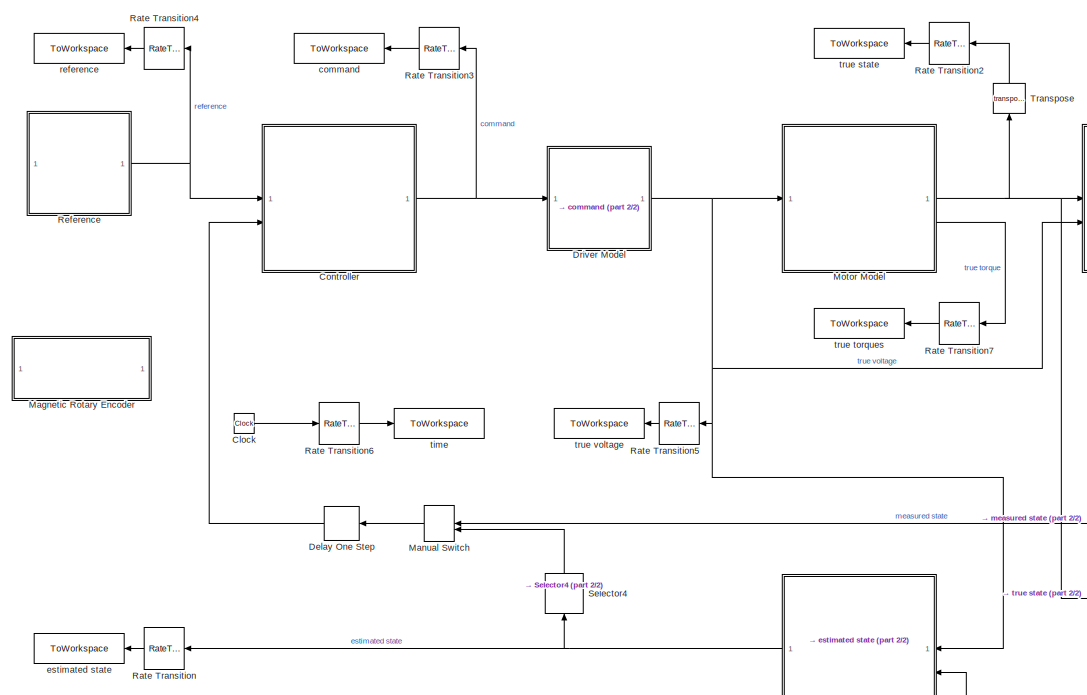
[diagram: root canvas - part 1/2, middle left region]
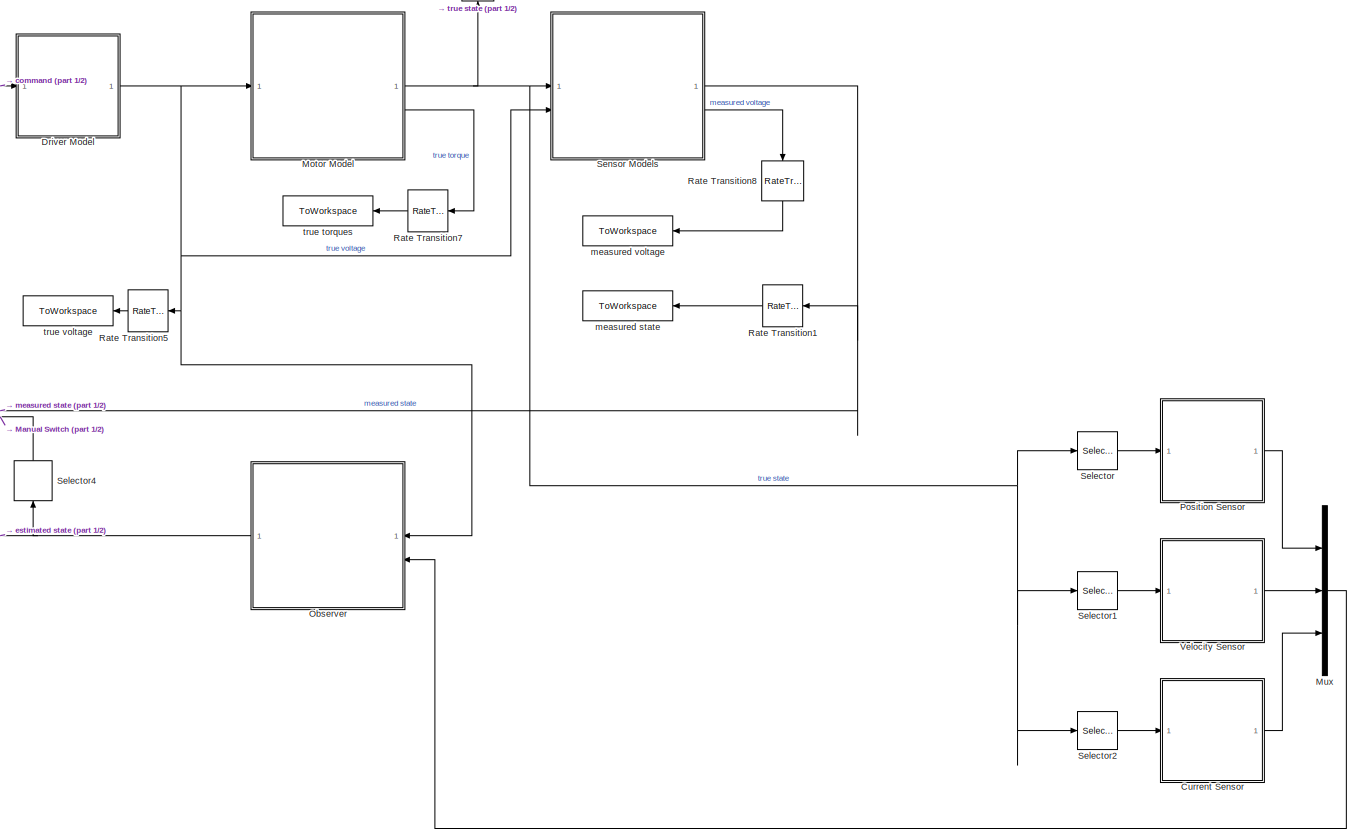
[diagram: root canvas - part 2/2, center side, full height]
MODEL slx_464a62b82a85
KIND model
CONFIG AbsTol = auto
CONFIG EnableMultiTasking = off
CONFIG FixedStep = 1e-4
CONFIG MaxStep = auto
CONFIG MinStep = auto
CONFIG RelTol = 1e-2
CONFIG SampleTimeConstraint = Unconstrained
CONFIG SolverName = ode23t
CONFIG StartTime = 0.0
CONFIG StopTime = sim_params.Tstop
BLOCK [Clock] Clock
  Decimation = 1
BLOCK [SubSystem] Controller
  Kd = 0.1
  Ki = 0.9
  Kp = 10
  ReferencedSubsystem = SWPID_Position
BLOCK [SubSystem] Current Sensor
  Commented = on
  ReferencedSubsystem = Ideal_Sensor
BLOCK [Delay] Delay One Step
  Commented = through
  DelayLength = 1
  InputPortMap = u0
  NameLocation = top
  SampleTime = 1e-3
BLOCK [SubSystem] Driver Model
  ReferencedSubsystem = Ideal_Driver
  driver_model = DRV8830
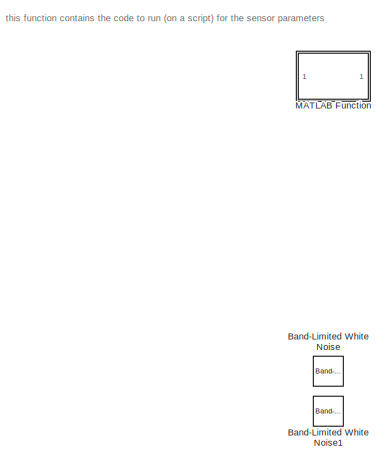
[diagram: Magnetic Rotary Encoder - part 1/2, top left region]
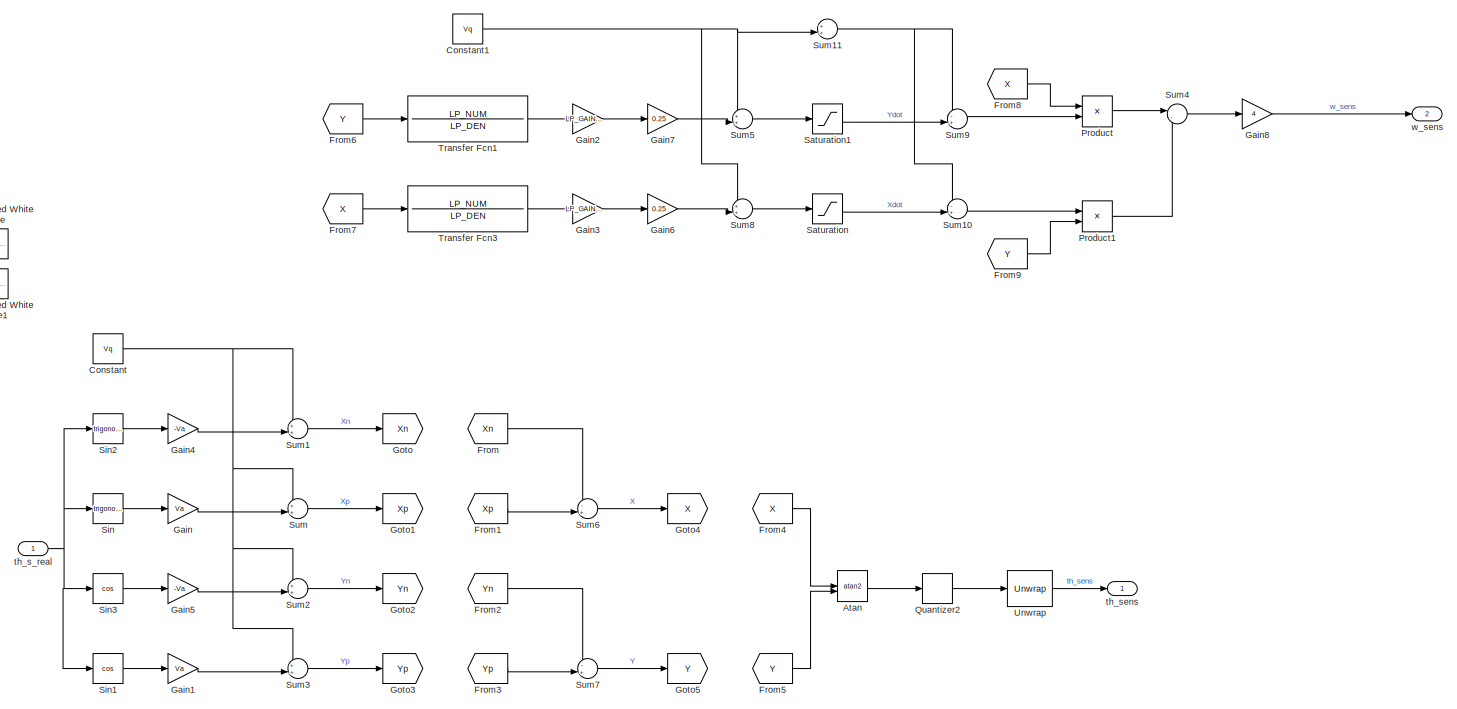
[diagram: Magnetic Rotary Encoder - part 2/2, most of the canvas]
BLOCK [SubSystem] Magnetic Rotary Encoder
  Commented = on
BLOCK [Trigonometry] Magnetic Rotary Encoder/Atan
  Operator = atan2
BLOCK [Reference] Magnetic Rotary Encoder/Band-Limited White Noise  REF=simulink/Sources/Band-Limited
White Noise
  Commented = on
  SourceBlock = simulink/Sources/Band-Limited\nWhite Noise
  SourceType = Band-Limited White Noise.
BLOCK [Reference] Magnetic Rotary Encoder/Band-Limited White Noise1  REF=simulink/Sources/Band-Limited
White Noise
  Commented = on
  SourceBlock = simulink/Sources/Band-Limited\nWhite Noise
  SourceType = Band-Limited White Noise.
BLOCK [Constant] Magnetic Rotary Encoder/Constant
  Value = Vq
BLOCK [Constant] Magnetic Rotary Encoder/Constant1
  Value = Vq
BLOCK [From] Magnetic Rotary Encoder/From
  GotoTag = Xn
BLOCK [From] Magnetic Rotary Encoder/From1
  GotoTag = Xp
BLOCK [From] Magnetic Rotary Encoder/From2
  GotoTag = Yn
BLOCK [From] Magnetic Rotary Encoder/From3
  GotoTag = Yp
BLOCK [From] Magnetic Rotary Encoder/From4
  GotoTag = X
BLOCK [From] Magnetic Rotary Encoder/From5
  GotoTag = Y
BLOCK [From] Magnetic Rotary Encoder/From6
  GotoTag = Y
BLOCK [From] Magnetic Rotary Encoder/From7
  GotoTag = X
BLOCK [From] Magnetic Rotary Encoder/From8
  GotoTag = X
BLOCK [From] Magnetic Rotary Encoder/From9
  GotoTag = Y
BLOCK [Gain] Magnetic Rotary Encoder/Gain
  Gain = Va
BLOCK [Gain] Magnetic Rotary Encoder/Gain1
  Gain = Va
BLOCK [Gain] Magnetic Rotary Encoder/Gain2
  Gain = LP_GAIN/(2*Va)^2
BLOCK [Gain] Magnetic Rotary Encoder/Gain3
  Gain = LP_GAIN/(2*Va)^2
BLOCK [Gain] Magnetic Rotary Encoder/Gain4
  Gain = -Va
BLOCK [Gain] Magnetic Rotary Encoder/Gain5
  Gain = -Va
BLOCK [Gain] Magnetic Rotary Encoder/Gain6
  Gain = 0.25
BLOCK [Gain] Magnetic Rotary Encoder/Gain7
  Gain = 0.25
BLOCK [Gain] Magnetic Rotary Encoder/Gain8
  Gain = 4
BLOCK [Goto] Magnetic Rotary Encoder/Goto
  GotoTag = Xn
BLOCK [Goto] Magnetic Rotary Encoder/Goto1
  GotoTag = Xp
BLOCK [Goto] Magnetic Rotary Encoder/Goto2
  GotoTag = Yn
BLOCK [Goto] Magnetic Rotary Encoder/Goto3
  GotoTag = Yp
BLOCK [Goto] Magnetic Rotary Encoder/Goto4
  GotoTag = X
BLOCK [Goto] Magnetic Rotary Encoder/Goto5
  GotoTag = Y
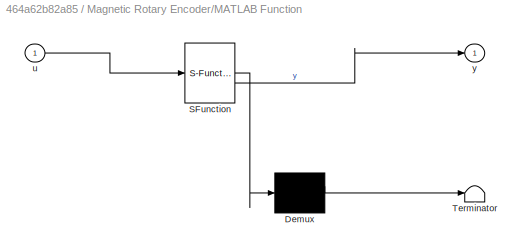
BLOCK [SubSystem] Magnetic Rotary Encoder/MATLAB Function
  ErrorFcn = Stateflow.Translate.translate
  LibrarySourceBlock = simulink/User-Defined\nFunctions/MATLAB Function
  PermitHierarchicalResolution = ExplicitOnly
  SFBlockType = MATLAB Function
  TreatAsAtomicUnit = on
BLOCK [Demux] Magnetic Rotary Encoder/MATLAB Function/ Demux 
  Outputs = 1
BLOCK [S-Function] Magnetic Rotary Encoder/MATLAB Function/ SFunction 
  EnableBusSupport = on
  FunctionName = sf_sfun
  PortCounts = [1 2]
  SFcnIsStateOwnerBlock = off
  SFunctionDeploymentMode = off
  Tag = Stateflow S-Function 2
BLOCK [Terminator] Magnetic Rotary Encoder/MATLAB Function/ Terminator 
BLOCK [Inport] Magnetic Rotary Encoder/MATLAB Function/u
BLOCK [Outport] Magnetic Rotary Encoder/MATLAB Function/y
BLOCK [Product] Magnetic Rotary Encoder/Product
BLOCK [Product] Magnetic Rotary Encoder/Product1
BLOCK [Quantizer] Magnetic Rotary Encoder/Quantizer2
  Commented = through
  QuantizationInterval = AS5600.q_step
BLOCK [Saturate] Magnetic Rotary Encoder/Saturation
  LowerLimit = 0.5
  UpperLimit = 4.5
BLOCK [Saturate] Magnetic Rotary Encoder/Saturation1
  LowerLimit = 0.5
  UpperLimit = 4.5
BLOCK [Trigonometry] Magnetic Rotary Encoder/Sin
BLOCK [Trigonometry] Magnetic Rotary Encoder/Sin1
  Operator = cos
BLOCK [Trigonometry] Magnetic Rotary Encoder/Sin2
BLOCK [Trigonometry] Magnetic Rotary Encoder/Sin3
  Operator = cos
BLOCK [Sum] Magnetic Rotary Encoder/Sum
  Inputs = ++|
BLOCK [Sum] Magnetic Rotary Encoder/Sum1
  Inputs = ++|
BLOCK [Sum] Magnetic Rotary Encoder/Sum10
  Inputs = -+|
BLOCK [Sum] Magnetic Rotary Encoder/Sum11
  Inputs = ++|
BLOCK [Sum] Magnetic Rotary Encoder/Sum2
  Inputs = ++|
BLOCK [Sum] Magnetic Rotary Encoder/Sum3
  Inputs = ++|
BLOCK [Sum] Magnetic Rotary Encoder/Sum4
  Inputs = |-+
BLOCK [Sum] Magnetic Rotary Encoder/Sum5
  Inputs = ++|
BLOCK [Sum] Magnetic Rotary Encoder/Sum6
  Inputs = -+|
BLOCK [Sum] Magnetic Rotary Encoder/Sum7
  Inputs = -+|
BLOCK [Sum] Magnetic Rotary Encoder/Sum8
  Inputs = ++|
BLOCK [Sum] Magnetic Rotary Encoder/Sum9
  Inputs = -+|
BLOCK [TransferFcn] Magnetic Rotary Encoder/Transfer Fcn1
  Denominator = LP_DEN
  Numerator = LP_NUM
BLOCK [TransferFcn] Magnetic Rotary Encoder/Transfer Fcn3
  Denominator = LP_DEN
  Numerator = LP_NUM
BLOCK [Reference] Magnetic Rotary Encoder/Unwrap  REF=dspsigops/Unwrap
  SourceBlock = dspsigops/Unwrap
  SourceType = Unwrap
  UserDataPersistent = on
BLOCK [Inport] Magnetic Rotary Encoder/th_s_real
  NameLocation = left
BLOCK [Outport] Magnetic Rotary Encoder/th_sens
  NameLocation = right
BLOCK [Outport] Magnetic Rotary Encoder/w_sens
  NameLocation = right
  Port = 2
BLOCK [ManualSwitch] Manual Switch
  NameLocation = top
BLOCK [SubSystem] Motor Model
  ReferencedSubsystem = Modular_Motor
  coulomb_friction = on
  flux_weakening = on
  initial_conditions = [0;0;0;0]
  motor_model = motor
  stribeck_friction = on
BLOCK [Mux] Mux
  Commented = on
  DisplayOption = bar
  Inputs = 3
BLOCK [SubSystem] Observer
  ReferencedSubsystem = No_Observer
BLOCK [SubSystem] Position Sensor
  Commented = on
  ReferencedSubsystem = AS5600_Sensor
  offset = 0
  sensor_model = AS5600
  wrapping = off
BLOCK [RateTransition] Rate Transition
  NameLocation = top
  OutPortSampleTime = sim_params.Tsample
BLOCK [RateTransition] Rate Transition1
  NameLocation = top
  OutPortSampleTime = sim_params.Tsample
BLOCK [RateTransition] Rate Transition2
  NameLocation = top
  OutPortSampleTime = sim_params.Tsample
BLOCK [RateTransition] Rate Transition3
  NameLocation = top
  OutPortSampleTime = sim_params.Tsample
BLOCK [RateTransition] Rate Transition4
  Commented = through
  NameLocation = top
  OutPortSampleTime = sim_params.Tsample
BLOCK [RateTransition] Rate Transition5
  NameLocation = top
  OutPortSampleTime = sim_params.Tsample
BLOCK [RateTransition] Rate Transition6
  OutPortSampleTime = sim_params.Tsample
BLOCK [RateTransition] Rate Transition7
  NameLocation = top
  OutPortSampleTime = sim_params.Tsample
BLOCK [RateTransition] Rate Transition8
  NameLocation = left
  OutPortSampleTime = sim_params.Tsample
BLOCK [SubSystem] Reference
  After = 3.1416*10
  ReferencedSubsystem = Step_Reference
  Time = 2
BLOCK [Selector] Selector
  Commented = on
  IndexOptions = Index vector (dialog)
  Indices = 1
  InputPortWidth = 3
  OutputSizes = 1
BLOCK [Selector] Selector1
  Commented = on
  IndexOptions = Index vector (dialog)
  Indices = 1
  InputPortWidth = 3
  OutputSizes = 1
BLOCK [Selector] Selector2
  Commented = on
  IndexOptions = Index vector (dialog)
  Indices = 3
  InputPortWidth = 3
  OutputSizes = 1
BLOCK [Selector] Selector4
  IndexOptions = Index vector (dialog)
  Indices = [1:3]
  InputPortWidth = 4
  NameLocation = right
  OutputSizes = 1
BLOCK [SubSystem] Sensor Models
  ReferencedSubsystem = Sensor_Array
  input1 = 1
  input2 = 1
  input3 = 3
  input4 = 4
BLOCK [Math] Transpose
  NameLocation = right
  Operator = transpose
BLOCK [SubSystem] Velocity Sensor
  Commented = on
  ReferencedSubsystem = Real_Derivative
BLOCK [ToWorkspace] command
  FixptAsFi = on
  MaxDataPoints = inf
  NameLocation = top
  SampleTime = sim_params.Tsample
  Save2DSignal = 2-D array (concatenate along first dimension)
  VariableName = sim_command
BLOCK [ToWorkspace] estimated state
  FixptAsFi = on
  MaxDataPoints = inf
  NameLocation = top
  SampleTime = sim_params.Tsample
  Save2DSignal = 2-D array (concatenate along first dimension)
  VariableName = sim_estimated_state
BLOCK [ToWorkspace] measured state
  FixptAsFi = on
  MaxDataPoints = inf
  NameLocation = top
  SampleTime = sim_params.Tsample
  Save2DSignal = 2-D array (concatenate along first dimension)
  VariableName = sim_measured_state
BLOCK [ToWorkspace] measured voltage
  FixptAsFi = on
  MaxDataPoints = inf
  NameLocation = top
  SampleTime = sim_params.Tsample
  Save2DSignal = 2-D array (concatenate along first dimension)
  VariableName = sim_measured_voltage
BLOCK [ToWorkspace] reference
  FixptAsFi = on
  MaxDataPoints = inf
  NameLocation = top
  SampleTime = sim_params.Tsample
  Save2DSignal = 2-D array (concatenate along first dimension)
  VariableName = sim_reference
BLOCK [ToWorkspace] time
  FixptAsFi = on
  MaxDataPoints = inf
  SampleTime = sim_params.Tsample
  Save2DSignal = 2-D array (concatenate along first dimension)
  VariableName = sim_time
BLOCK [ToWorkspace] true state
  FixptAsFi = on
  MaxDataPoints = inf
  NameLocation = top
  SampleTime = sim_params.Tsample
  Save2DSignal = 2-D array (concatenate along first dimension)
  VariableName = sim_true_state
BLOCK [ToWorkspace] true torques
  FixptAsFi = on
  MaxDataPoints = inf
  NameLocation = top
  SampleTime = sim_params.Tsample
  Save2DSignal = 2-D array (concatenate along first dimension)
  VariableName = sim_true_torques
BLOCK [ToWorkspace] true voltage
  FixptAsFi = on
  MaxDataPoints = inf
  NameLocation = top
  SampleTime = sim_params.Tsample
  Save2DSignal = 2-D array (concatenate along first dimension)
  VariableName = sim_true_voltage
ANNOTATION Magnetic Rotary Encoder: this function contains the code to run (on a script) for the sensor parameters
LINE Clock:1 -> Rate Transition6:1
NET Controller:1 -> Driver Model:1, Rate Transition3:1
LINE Current Sensor:1 -> Mux:3
LINE Delay One Step:1 -> Controller:2
NET Driver Model:1 -> Motor Model:1, Observer:1, Rate Transition5:1, Sensor Models:2
LINE Magnetic Rotary Encoder/Atan:1 -> Magnetic Rotary Encoder/Quantizer2:1
NET Magnetic Rotary Encoder/Constant1:1 -> Magnetic Rotary Encoder/Sum11:2, Magnetic Rotary Encoder/Sum5:1, Magnetic Rotary Encoder/Sum8:1
NET Magnetic Rotary Encoder/Constant:1 -> Magnetic Rotary Encoder/Sum1:1, Magnetic Rotary Encoder/Sum2:1, Magnetic Rotary Encoder/Sum3:1, Magnetic Rotary Encoder/Sum:1
LINE Magnetic Rotary Encoder/From1:1 -> Magnetic Rotary Encoder/Sum6:2
LINE Magnetic Rotary Encoder/From2:1 -> Magnetic Rotary Encoder/Sum7:1
LINE Magnetic Rotary Encoder/From3:1 -> Magnetic Rotary Encoder/Sum7:2
LINE Magnetic Rotary Encoder/From4:1 -> Magnetic Rotary Encoder/Atan:1
LINE Magnetic Rotary Encoder/From5:1 -> Magnetic Rotary Encoder/Atan:2
LINE Magnetic Rotary Encoder/From6:1 -> Magnetic Rotary Encoder/Transfer Fcn1:1
LINE Magnetic Rotary Encoder/From7:1 -> Magnetic Rotary Encoder/Transfer Fcn3:1
LINE Magnetic Rotary Encoder/From8:1 -> Magnetic Rotary Encoder/Product:1
LINE Magnetic Rotary Encoder/From9:1 -> Magnetic Rotary Encoder/Product1:2
LINE Magnetic Rotary Encoder/From:1 -> Magnetic Rotary Encoder/Sum6:1
LINE Magnetic Rotary Encoder/Gain1:1 -> Magnetic Rotary Encoder/Sum3:2
LINE Magnetic Rotary Encoder/Gain2:1 -> Magnetic Rotary Encoder/Gain7:1
LINE Magnetic Rotary Encoder/Gain3:1 -> Magnetic Rotary Encoder/Gain6:1
LINE Magnetic Rotary Encoder/Gain4:1 -> Magnetic Rotary Encoder/Sum1:2
LINE Magnetic Rotary Encoder/Gain5:1 -> Magnetic Rotary Encoder/Sum2:2
LINE Magnetic Rotary Encoder/Gain6:1 -> Magnetic Rotary Encoder/Sum8:2
LINE Magnetic Rotary Encoder/Gain7:1 -> Magnetic Rotary Encoder/Sum5:2
LINE Magnetic Rotary Encoder/Gain8:1 -> Magnetic Rotary Encoder/w_sens:1
LINE Magnetic Rotary Encoder/Gain:1 -> Magnetic Rotary Encoder/Sum:2
LINE Magnetic Rotary Encoder/Product1:1 -> Magnetic Rotary Encoder/Sum4:2
LINE Magnetic Rotary Encoder/Product:1 -> Magnetic Rotary Encoder/Sum4:1
LINE Magnetic Rotary Encoder/Quantizer2:1 -> Magnetic Rotary Encoder/Unwrap:1
LINE Magnetic Rotary Encoder/Saturation1:1 -> Magnetic Rotary Encoder/Sum9:2
LINE Magnetic Rotary Encoder/Saturation:1 -> Magnetic Rotary Encoder/Sum10:2
LINE Magnetic Rotary Encoder/Sin1:1 -> Magnetic Rotary Encoder/Gain1:1
LINE Magnetic Rotary Encoder/Sin2:1 -> Magnetic Rotary Encoder/Gain4:1
LINE Magnetic Rotary Encoder/Sin3:1 -> Magnetic Rotary Encoder/Gain5:1
LINE Magnetic Rotary Encoder/Sin:1 -> Magnetic Rotary Encoder/Gain:1
LINE Magnetic Rotary Encoder/Sum10:1 -> Magnetic Rotary Encoder/Product1:1
NET Magnetic Rotary Encoder/Sum11:1 -> Magnetic Rotary Encoder/Sum10:1, Magnetic Rotary Encoder/Sum9:1
LINE Magnetic Rotary Encoder/Sum1:1 -> Magnetic Rotary Encoder/Goto:1
LINE Magnetic Rotary Encoder/Sum2:1 -> Magnetic Rotary Encoder/Goto2:1
LINE Magnetic Rotary Encoder/Sum3:1 -> Magnetic Rotary Encoder/Goto3:1
LINE Magnetic Rotary Encoder/Sum4:1 -> Magnetic Rotary Encoder/Gain8:1
LINE Magnetic Rotary Encoder/Sum5:1 -> Magnetic Rotary Encoder/Saturation1:1
LINE Magnetic Rotary Encoder/Sum6:1 -> Magnetic Rotary Encoder/Goto4:1
LINE Magnetic Rotary Encoder/Sum7:1 -> Magnetic Rotary Encoder/Goto5:1
LINE Magnetic Rotary Encoder/Sum8:1 -> Magnetic Rotary Encoder/Saturation:1
LINE Magnetic Rotary Encoder/Sum9:1 -> Magnetic Rotary Encoder/Product:2
LINE Magnetic Rotary Encoder/Sum:1 -> Magnetic Rotary Encoder/Goto1:1
LINE Magnetic Rotary Encoder/Transfer Fcn1:1 -> Magnetic Rotary Encoder/Gain2:1
LINE Magnetic Rotary Encoder/Transfer Fcn3:1 -> Magnetic Rotary Encoder/Gain3:1
LINE Magnetic Rotary Encoder/Unwrap:1 -> Magnetic Rotary Encoder/th_sens:1
NET Magnetic Rotary Encoder/th_s_real:1 -> Magnetic Rotary Encoder/Sin1:1, Magnetic Rotary Encoder/Sin2:1, Magnetic Rotary Encoder/Sin3:1, Magnetic Rotary Encoder/Sin:1
LINE Manual Switch:1 -> Delay One Step:1
NET Motor Model:1 -> Selector1:1, Selector2:1, Selector:1, Sensor Models:1, Transpose:1
LINE Motor Model:2 -> Rate Transition7:1
LINE Mux:1 -> Observer:2
NET Observer:1 -> Rate Transition:1, Selector4:1
LINE Position Sensor:1 -> Mux:1
LINE Rate Transition1:1 -> measured state:1
LINE Rate Transition2:1 -> true state:1
LINE Rate Transition3:1 -> command:1
LINE Rate Transition4:1 -> reference:1
LINE Rate Transition5:1 -> true voltage:1
LINE Rate Transition6:1 -> time:1
LINE Rate Transition7:1 -> true torques:1
LINE Rate Transition8:1 -> measured voltage:1
LINE Rate Transition:1 -> estimated state:1
NET Reference:1 -> Controller:1, Rate Transition4:1
LINE Selector1:1 -> Velocity Sensor:1
LINE Selector2:1 -> Current Sensor:1
LINE Selector4:1 -> Manual Switch:2
LINE Selector:1 -> Position Sensor:1
NET Sensor Models:1 -> Manual Switch:1, Rate Transition1:1
LINE Sensor Models:2 -> Rate Transition8:1
LINE Transpose:1 -> Rate Transition2:1
LINE Velocity Sensor:1 -> Mux:2
note: NET lines group one-source signal fan-out (src -> all destinations, sorted); 1:1 wires keep LINE
CHART Magnetic Rotary Encoder/MATLAB Function states=1 transitions=1
  STATE_LABEL 'eML_blk_kernel()'
  STATE_LABEL "SCRIPT:\nfunction y = fcn(u)\n\n% Low Speed Tachometer Parameters\ns = tf('s');\nwn = 50*2*pi;           % cutoff frequency [Hz]\ncsi = 1/sqrt(2);        % damping coefficient\n\nlowpass = s / (s^2 + 2*csi*wn*s + wn^2);\n[LP_NUM, LP_DEN] = tfdata(lowpass);\nLP_NUM = cell2mat(LP_NUM);\nLP_DEN = cell2mat(LP_DEN);\n\n[LP_MAG, LP_PHASE] = bode(lowpass, 1);\nLP_GAIN = 1/LP_MAG;\n\nnoise_pwr = 1e-7;\n\n% Discrete Lowpass...<+166ch>"
CHART  states=0 transitions=0
